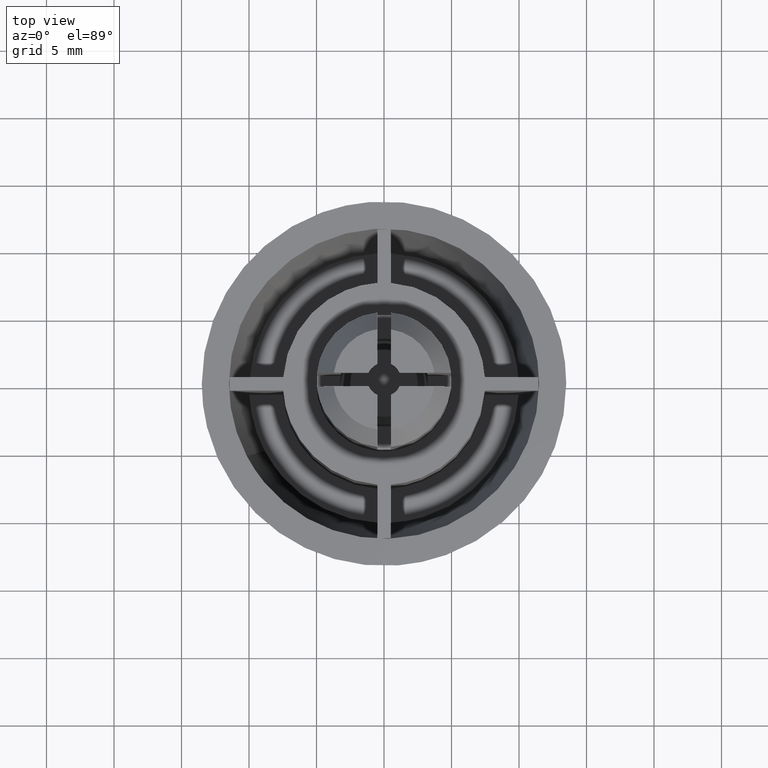
[diagram: clean part render]
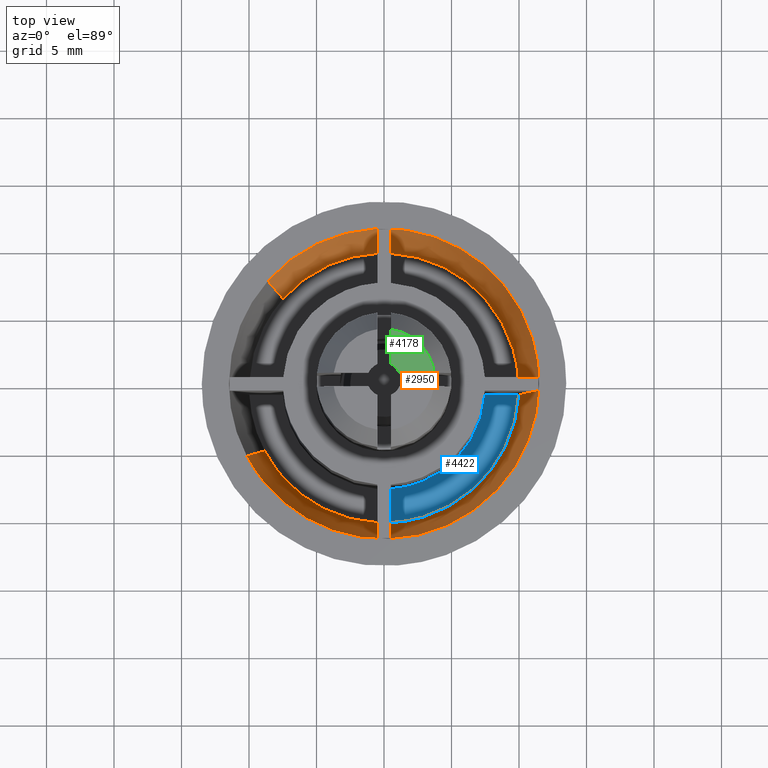
[diagram: same view with three faces highlighted in distinct colors, each labeled with its STEP entity id]
A machine part, top view with three faces highlighted in distinct colors.
Their STEP definitions:

[orange] entity #2950 — the highlighted face is a freeform B-spline surface patch.
#2697=CARTESIAN_POINT('',(-8.800679944089653,-4.642150836173336,-18.757499999999997));
#2698=CARTESIAN_POINT('',(-7.953315899770522,-6.248600090702392,-18.757500000000000));
#2699=CARTESIAN_POINT('',(-6.593037243172020,-7.452072985031303,-18.757500000000000));
#2700=CARTESIAN_POINT('',(0.859035741859283,-14.045110228203322,-18.757500000000007));
#2701=CARTESIAN_POINT('',(7.452072985031303,-6.593037243172020,-18.757500000000000));
#2702=CARTESIAN_POINT('',(14.045110228203322,0.859035741859283,-18.757500000000007));
#2703=CARTESIAN_POINT('',(6.593037243172020,7.452072985031303,-18.757500000000000));
#2704=CARTESIAN_POINT('',(-0.859035741859283,14.045110228203322,-18.757500000000007));
#2705=CARTESIAN_POINT('',(-7.452072985031303,6.593037243172020,-18.757500000000000));
#2706=CARTESIAN_POINT('',(-10.196106031705060,-5.378205143408116,0.468937499999999));
#2707=CARTESIAN_POINT('',(-9.214384880814372,-7.239371216687707,0.468937499999999));
#2708=CARTESIAN_POINT('',(-7.638421943466772,-8.633665443362924,0.468937499999999));
#2709=CARTESIAN_POINT('',(0.995243499896152,-16.272087386829703,0.468937499999999));
#2710=CARTESIAN_POINT('',(8.633665443362924,-7.638421943466772,0.468937499999999));
#2711=CARTESIAN_POINT('',(16.272087386829703,0.995243499896152,0.468937499999999));
#2712=CARTESIAN_POINT('',(7.638421943466772,8.633665443362924,0.468937499999999));
#2713=CARTESIAN_POINT('',(-0.995243499896152,16.272087386829703,0.468937499999999));
#2714=CARTESIAN_POINT('',(-8.633665443362924,7.638421943466772,0.468937499999999));
#2722=(BOUNDED_SURFACE()B_SPLINE_SURFACE(2,1,((#2697,#2706),(#2698,#2707),(#2699,#2708),(#2700,#2709),(#2701,#2710),(#2702,#2711),(#2703,#2712),(#2704,#2713),(#2705,#2714)),.UNSPECIFIED.,.F.,.F.,.U.)B_SPLINE_SURFACE_WITH_KNOTS((3,2,2,2,3),(2,2),(0.0,4.583894576879430,23.683455313877051,42.783016050874657,61.882576787872267),(0.0,19.291057224802451),.UNSPECIFIED.)GEOMETRIC_REPRESENTATION_ITEM()RATIONAL_B_SPLINE_SURFACE(((0.893152553776853,0.893152553776853),(0.929705627484771,0.929705627484771),(1.0,1.0),(0.707106781186548,0.707106781186548),(1.0,1.0),(0.707106781186548,0.707106781186548),(1.0,1.0),(0.707106781186548,0.707106781186548),(1.0,1.0)))REPRESENTATION_ITEM('')SURFACE());
#2723=CARTESIAN_POINT('',(-0.500000000000000,-9.974968671630011,-18.300000000000001));
#2724=VERTEX_POINT('',#2723);
#2725=CARTESIAN_POINT('',(-8.833886152472324,-4.659662250770997,-18.300001924183981));
#2726=VERTEX_POINT('',#2725);
#2727=CARTESIAN_POINT('',(-0.500000000000000,-9.974968671630011,-18.300000000000001));
#2728=CARTESIAN_POINT('',(-6.180379209926489,-9.690236949578978,-18.300000962091993));
#2729=CARTESIAN_POINT('',(-8.833886152472324,-4.659662250770997,-18.300001924183977));
#2737=(BOUNDED_CURVE()B_SPLINE_CURVE(2,(#2727,#2728,#2729),.UNSPECIFIED.,.F.,.U.)B_SPLINE_CURVE_WITH_KNOTS((3,3),(0.0,0.696200723080585),.UNSPECIFIED.)CURVE()GEOMETRIC_REPRESENTATION_ITEM()RATIONAL_B_SPLINE_CURVE((1.0,0.820115478133345,0.890702424655831))REPRESENTATION_ITEM(''));
#2738=EDGE_CURVE('',#2724,#2726,#2737,.T.);
#2739=ORIENTED_EDGE('',*,*,#2738,.T.);
#2740=CARTESIAN_POINT('',(-10.162072490668480,-5.360249970135248,-0.000001565650544));
#2741=VERTEX_POINT('',#2740);
#2742=CARTESIAN_POINT('',(-8.833886152472324,-4.659662250770997,-18.300001924183981));
#2743=CARTESIAN_POINT('',(-10.162072490668480,-5.360249970135248,-0.000001565650544));
#2744=QUASI_UNIFORM_CURVE('',1,(#2742,#2743),.UNSPECIFIED.,.F.,.U.);
#2745=EDGE_CURVE('',#2726,#2741,#2744,.T.);
#2746=ORIENTED_EDGE('',*,*,#2745,.T.);
#2747=CARTESIAN_POINT('',(11.489125293076061,0.0,0.0));
#2748=VERTEX_POINT('',#2747);
#2749=CARTESIAN_POINT('',(11.489125293076061,0.0,0.0));
#2750=CARTESIAN_POINT('',(11.489125307142276,-11.489125285656471,-0.000000193806329));
#2751=CARTESIAN_POINT('',(0.000000070882674,-11.489125255687149,-0.000000976631601));
#2752=CARTESIAN_POINT('',(-6.929237516363066,-11.489125237612265,-0.000001448763481));
#2753=CARTESIAN_POINT('',(-10.162072490668479,-5.360249970135248,-0.000001565650544));
#2761=(BOUNDED_CURVE()B_SPLINE_CURVE(2,(#2749,#2750,#2751,#2752,#2753),.UNSPECIFIED.,.F.,.U.)B_SPLINE_CURVE_WITH_KNOTS((3,2,3),(0.500000000000000,0.750000000000000,0.920610951490285),.UNSPECIFIED.)CURVE()GEOMETRIC_REPRESENTATION_ITEM()RATIONAL_B_SPLINE_CURVE((1.0,0.707106781186547,1.0,0.800116837012739,0.873051727018632))REPRESENTATION_ITEM(''));
#2762=EDGE_CURVE('',#2748,#2741,#2761,.T.);
#2763=ORIENTED_EDGE('',*,*,#2762,.F.);
#2764=CARTESIAN_POINT('',(-8.604846457047625,7.612924142831815,-0.000001827683811));
#2765=VERTEX_POINT('',#2764);
#2766=CARTESIAN_POINT('',(-8.604846457047625,7.612924142831816,-0.000001827683811));
#2767=CARTESIAN_POINT('',(-5.175473878762452,11.489125202180796,-0.000001671721395));
#2768=CARTESIAN_POINT('',(0.000000077439428,11.489125224563450,-0.000001260065601));
#2769=CARTESIAN_POINT('',(11.489125314353814,11.489125274251098,-0.000000346223695));
#2770=CARTESIAN_POINT('',(11.489125293076061,0.0,0.0));
#2778=(BOUNDED_CURVE()B_SPLINE_CURVE(2,(#2766,#2767,#2768,#2769,#2770),.UNSPECIFIED.,.F.,.U.)B_SPLINE_CURVE_WITH_KNOTS((3,2,3),(0.115779879047722,0.250000000000000,0.500000000000000),.UNSPECIFIED.)CURVE()GEOMETRIC_REPRESENTATION_ITEM()RATIONAL_B_SPLINE_CURVE((0.854350159782515,0.842751346979026,1.0,0.707106781186547,1.0))REPRESENTATION_ITEM(''));
#2779=EDGE_CURVE('',#2765,#2748,#2778,.T.);
#2780=ORIENTED_EDGE('',*,*,#2779,.F.);
#2781=CARTESIAN_POINT('',(-7.480189557175571,6.617912275213395,-18.300000796974061));
#2782=VERTEX_POINT('',#2781);
#2783=CARTESIAN_POINT('',(-7.480189557175571,6.617912275213395,-18.300000796974061));
#2784=CARTESIAN_POINT('',(-8.604846457047625,7.612924142831815,-0.000001827683811));
#2785=QUASI_UNIFORM_CURVE('',1,(#2783,#2784),.UNSPECIFIED.,.F.,.U.);
#2786=EDGE_CURVE('',#2782,#2765,#2785,.T.);
#2787=ORIENTED_EDGE('',*,*,#2786,.F.);
#2788=CARTESIAN_POINT('',(-0.499999999999915,9.974968671630011,-18.300000000000001));
#2789=VERTEX_POINT('',#2788);
#2790=CARTESIAN_POINT('',(-7.480189557175571,6.617912275213395,-18.300000796974057));
#2791=CARTESIAN_POINT('',(-4.696207739756175,9.764631783470644,-18.300000000000004));
#2792=CARTESIAN_POINT('',(-0.499999999999915,9.974968671630007,-18.300000000000001));
#2800=(BOUNDED_CURVE()B_SPLINE_CURVE(2,(#2790,#2791,#2792),.UNSPECIFIED.,.F.,.U.)B_SPLINE_CURVE_WITH_KNOTS((3,3),(0.460338608839000,1.0),.UNSPECIFIED.)CURVE()GEOMETRIC_REPRESENTATION_ITEM()RATIONAL_B_SPLINE_CURVE((0.871622749116844,0.860562150970857,1.0))REPRESENTATION_ITEM(''));
#2801=EDGE_CURVE('',#2782,#2789,#2800,.T.);
#2802=ORIENTED_EDGE('',*,*,#2801,.T.);
#2803=CARTESIAN_POINT('',(-0.499999999999915,11.437173008651300,-0.500000000000000));
#2804=VERTEX_POINT('',#2803);
#2805=CARTESIAN_POINT('',(-0.499999999999915,11.437173008651310,-0.500000000000008));
#2806=CARTESIAN_POINT('',(-0.499999999999915,11.008137666347549,-5.723549437452541));
#2807=CARTESIAN_POINT('',(-0.499999999999915,10.579057318380380,-10.947095178762581));
#2808=CARTESIAN_POINT('',(-0.499999999999915,10.149912354649819,-16.170635611319899));
#2809=CARTESIAN_POINT('',(-0.499999999999915,10.091599023222461,-16.880423841898260));
#2810=CARTESIAN_POINT('',(-0.499999999999915,10.033284483780021,-17.590211973232140));
#2811=CARTESIAN_POINT('',(-0.499999999999915,9.974968671630013,-18.300000000000001));
#2812=B_SPLINE_CURVE_WITH_KNOTS('',3,(#2805,#2806,#2807,#2808,#2809,#2810,#2811),.UNSPECIFIED.,.F.,.U.,(4,3,4),(0.016651394719462,0.032374812300708,0.034511351088305),.UNSPECIFIED.);
#2813=EDGE_CURVE('',#2804,#2789,#2812,.T.);
#2814=ORIENTED_EDGE('',*,*,#2813,.F.);
#2815=CARTESIAN_POINT('',(0.500000000000000,11.437173008651300,-0.500000000000000));
#2816=VERTEX_POINT('',#2815);
#2817=CARTESIAN_POINT('',(0.499999999999999,11.437173008651291,-0.500000000000000));
#2818=CARTESIAN_POINT('',(4.564491E-014,11.459031557071512,-0.500000000000000));
#2819=CARTESIAN_POINT('',(-0.499999999999914,11.437173008651300,-0.500000000000000));
#2827=(BOUNDED_CURVE()B_SPLINE_CURVE(2,(#2817,#2818,#2819),.UNSPECIFIED.,.F.,.U.)CURVE()GEOMETRIC_REPRESENTATION_ITEM()QUASI_UNIFORM_CURVE()RATIONAL_B_SPLINE_CURVE((1.0,0.999045775278953,1.0))REPRESENTATION_ITEM(''));
#2828=EDGE_CURVE('',#2816,#2804,#2827,.T.);
#2829=ORIENTED_EDGE('',*,*,#2828,.F.);
#2830=CARTESIAN_POINT('',(0.500000000000000,9.974968671630011,-18.300000000000001));
#2831=VERTEX_POINT('',#2830);
#2832=CARTESIAN_POINT('',(0.500000000000000,11.437173008651310,-0.500000000000007));
#2833=CARTESIAN_POINT('',(0.500000000000000,11.008137666347549,-5.723549437452541));
#2834=CARTESIAN_POINT('',(0.500000000000000,10.579057318380380,-10.947095178762581));
#2835=CARTESIAN_POINT('',(0.500000000000000,10.149912354649819,-16.170635611319899));
#2836=CARTESIAN_POINT('',(0.500000000000000,10.091599023222461,-16.880423841898260));
#2837=CARTESIAN_POINT('',(0.500000000000000,10.033284483780010,-17.590211973232140));
#2838=CARTESIAN_POINT('',(0.500000000000000,9.974968671630007,-18.300000000000001));
#2839=B_SPLINE_CURVE_WITH_KNOTS('',3,(#2832,#2833,#2834,#2835,#2836,#2837,#2838),.UNSPECIFIED.,.F.,.U.,(4,3,4),(0.016651394719462,0.032374812300708,0.034511351088305),.UNSPECIFIED.);
#2840=EDGE_CURVE('',#2816,#2831,#2839,.T.);
#2841=ORIENTED_EDGE('',*,*,#2840,.T.);
#2842=CARTESIAN_POINT('',(9.974968671630011,0.499999999999915,-18.300000000000001));
#2843=VERTEX_POINT('',#2842);
#2844=CARTESIAN_POINT('',(0.500000000000000,9.974968671630002,-18.300000000000001));
#2845=CARTESIAN_POINT('',(9.522701511285646,9.522701511285566,-18.300000000000001));
#2846=CARTESIAN_POINT('',(9.974968671630007,0.499999999999916,-18.300000000000001));
#2854=(BOUNDED_CURVE()B_SPLINE_CURVE(2,(#2844,#2845,#2846),.UNSPECIFIED.,.F.,.U.)CURVE()GEOMETRIC_REPRESENTATION_ITEM()QUASI_UNIFORM_CURVE()RATIONAL_B_SPLINE_CURVE((1.0,0.741619742836961,1.0))REPRESENTATION_ITEM(''));
#2855=EDGE_CURVE('',#2831,#2843,#2854,.T.);
#2856=ORIENTED_EDGE('',*,*,#2855,.T.);
#2857=CARTESIAN_POINT('',(11.437173008651300,0.499999999999915,-0.500000000000000));
#2858=VERTEX_POINT('',#2857);
#2859=CARTESIAN_POINT('',(11.437173008651310,0.499999999999915,-0.500000000000008));
#2860=CARTESIAN_POINT('',(11.008137666347549,0.499999999999915,-5.723549437452541));
#2861=CARTESIAN_POINT('',(10.579057318380380,0.499999999999915,-10.947095178762581));
#2862=CARTESIAN_POINT('',(10.149912354649819,0.499999999999915,-16.170635611319899));
#2863=CARTESIAN_POINT('',(10.091599023222461,0.499999999999915,-16.880423841898260));
#2864=CARTESIAN_POINT('',(10.033284483780021,0.499999999999915,-17.590211973232140));
#2865=CARTESIAN_POINT('',(9.974968671630013,0.499999999999915,-18.300000000000001));
#2866=B_SPLINE_CURVE_WITH_KNOTS('',3,(#2859,#2860,#2861,#2862,#2863,#2864,#2865),.UNSPECIFIED.,.F.,.U.,(4,3,4),(0.016651394719462,0.032374812300708,0.034511351088305),.UNSPECIFIED.);
#2867=EDGE_CURVE('',#2858,#2843,#2866,.T.);
#2868=ORIENTED_EDGE('',*,*,#2867,.F.);
#2869=CARTESIAN_POINT('',(11.437173008651300,-0.500000000000000,-0.500000000000000));
#2870=VERTEX_POINT('',#2869);
#2871=CARTESIAN_POINT('',(11.437173008651291,-0.500000000000001,-0.500000000000000));
#2872=CARTESIAN_POINT('',(11.459031557071512,-4.737963E-014,-0.500000000000000));
#2873=CARTESIAN_POINT('',(11.437173008651300,0.499999999999914,-0.500000000000000));
#2881=(BOUNDED_CURVE()B_SPLINE_CURVE(2,(#2871,#2872,#2873),.UNSPECIFIED.,.F.,.U.)CURVE()GEOMETRIC_REPRESENTATION_ITEM()QUASI_UNIFORM_CURVE()RATIONAL_B_SPLINE_CURVE((1.0,0.999045775278953,1.0))REPRESENTATION_ITEM(''));
#2882=EDGE_CURVE('',#2870,#2858,#2881,.T.);
#2883=ORIENTED_EDGE('',*,*,#2882,.F.);
#2884=CARTESIAN_POINT('',(9.974968671630011,-0.500000000000000,-18.300000000000001));
#2885=VERTEX_POINT('',#2884);
#2886=CARTESIAN_POINT('',(11.437173008651310,-0.500000000000000,-0.500000000000007));
#2887=CARTESIAN_POINT('',(11.008137666347549,-0.500000000000000,-5.723549437452541));
#2888=CARTESIAN_POINT('',(10.579057318380380,-0.500000000000000,-10.947095178762581));
#2889=CARTESIAN_POINT('',(10.149912354649819,-0.500000000000000,-16.170635611319899));
#2890=CARTESIAN_POINT('',(10.091599023222461,-0.500000000000000,-16.880423841898260));
#2891=CARTESIAN_POINT('',(10.033284483780010,-0.500000000000000,-17.590211973232140));
#2892=CARTESIAN_POINT('',(9.974968671630007,-0.500000000000000,-18.300000000000001));
#2893=B_SPLINE_CURVE_WITH_KNOTS('',3,(#2886,#2887,#2888,#2889,#2890,#2891,#2892),.UNSPECIFIED.,.F.,.U.,(4,3,4),(0.016651394719462,0.032374812300708,0.034511351088305),.UNSPECIFIED.);
#2894=EDGE_CURVE('',#2870,#2885,#2893,.T.);
#2895=ORIENTED_EDGE('',*,*,#2894,.T.);
#2896=CARTESIAN_POINT('',(0.499999999999915,-9.974968671630011,-18.300000000000001));
#2897=VERTEX_POINT('',#2896);
#2898=CARTESIAN_POINT('',(9.974968671630002,-0.499999999999997,-18.300000000000001));
#2899=CARTESIAN_POINT('',(9.522701511285568,-9.522701511285646,-18.300000000000004));
#2900=CARTESIAN_POINT('',(0.499999999999916,-9.974968671630007,-18.300000000000001));
#2908=(BOUNDED_CURVE()B_SPLINE_CURVE(2,(#2898,#2899,#2900),.UNSPECIFIED.,.F.,.U.)CURVE()GEOMETRIC_REPRESENTATION_ITEM()QUASI_UNIFORM_CURVE()RATIONAL_B_SPLINE_CURVE((1.0,0.741619742836961,1.0))REPRESENTATION_ITEM(''));
#2909=EDGE_CURVE('',#2885,#2897,#2908,.T.);
#2910=ORIENTED_EDGE('',*,*,#2909,.T.);
#2911=CARTESIAN_POINT('',(0.499999999999915,-11.437173008651300,-0.500000000000000));
#2912=VERTEX_POINT('',#2911);
#2913=CARTESIAN_POINT('',(0.499999999999915,-11.437173008651310,-0.500000000000008));
#2914=CARTESIAN_POINT('',(0.499999999999915,-11.008137666347549,-5.723549437452541));
#2915=CARTESIAN_POINT('',(0.499999999999915,-10.579057318380380,-10.947095178762581));
#2916=CARTESIAN_POINT('',(0.499999999999915,-10.149912354649819,-16.170635611319899));
#2917=CARTESIAN_POINT('',(0.499999999999915,-10.091599023222461,-16.880423841898260));
#2918=CARTESIAN_POINT('',(0.499999999999915,-10.033284483780021,-17.590211973232140));
#2919=CARTESIAN_POINT('',(0.499999999999915,-9.974968671630013,-18.300000000000001));
#2920=B_SPLINE_CURVE_WITH_KNOTS('',3,(#2913,#2914,#2915,#2916,#2917,#2918,#2919),.UNSPECIFIED.,.F.,.U.,(4,3,4),(0.016651394719462,0.032374812300708,0.034511351088305),.UNSPECIFIED.);
#2921=EDGE_CURVE('',#2912,#2897,#2920,.T.);
#2922=ORIENTED_EDGE('',*,*,#2921,.F.);
#2923=CARTESIAN_POINT('',(-0.500000000000000,-11.437173008651300,-0.500000000000000));
#2924=VERTEX_POINT('',#2923);
#2925=CARTESIAN_POINT('',(-0.500000000000000,-11.437173008651291,-0.500000000000000));
#2926=CARTESIAN_POINT('',(-4.586175E-014,-11.459031557071512,-0.500000000000000));
#2927=CARTESIAN_POINT('',(0.499999999999915,-11.437173008651300,-0.500000000000000));
#2935=(BOUNDED_CURVE()B_SPLINE_CURVE(2,(#2925,#2926,#2927),.UNSPECIFIED.,.F.,.U.)CURVE()GEOMETRIC_REPRESENTATION_ITEM()QUASI_UNIFORM_CURVE()RATIONAL_B_SPLINE_CURVE((1.0,0.999045775278953,1.0))REPRESENTATION_ITEM(''));
#2936=EDGE_CURVE('',#2924,#2912,#2935,.T.);
#2937=ORIENTED_EDGE('',*,*,#2936,.F.);
#2938=CARTESIAN_POINT('',(-0.500000000000000,-11.437173008651310,-0.500000000000007));
#2939=CARTESIAN_POINT('',(-0.500000000000000,-11.008137666347549,-5.723549437452541));
#2940=CARTESIAN_POINT('',(-0.500000000000000,-10.579057318380380,-10.947095178762581));
#2941=CARTESIAN_POINT('',(-0.500000000000000,-10.149912354649819,-16.170635611319899));
#2942=CARTESIAN_POINT('',(-0.500000000000000,-10.091599023222461,-16.880423841898260));
#2943=CARTESIAN_POINT('',(-0.500000000000000,-10.033284483780010,-17.590211973232140));
#2944=CARTESIAN_POINT('',(-0.500000000000000,-9.974968671630007,-18.300000000000001));
#2945=B_SPLINE_CURVE_WITH_KNOTS('',3,(#2938,#2939,#2940,#2941,#2942,#2943,#2944),.UNSPECIFIED.,.F.,.U.,(4,3,4),(0.016651394719462,0.032374812300708,0.034511351088305),.UNSPECIFIED.);
#2946=EDGE_CURVE('',#2924,#2724,#2945,.T.);
#2947=ORIENTED_EDGE('',*,*,#2946,.T.);
#2948=EDGE_LOOP('',(#2739,#2746,#2763,#2780,#2787,#2802,#2814,#2829,#2841,#2856,#2868,#2883,#2895,#2910,#2922,#2937,#2947));
#2949=FACE_OUTER_BOUND('',#2948,.T.);
#2950=ADVANCED_FACE('',(#2949),#2722,.F.);

[blue] entity #4422 — the highlighted face is a freeform B-spline surface patch.
#2884=CARTESIAN_POINT('',(9.974968671630011,-0.500000000000000,-18.300000000000001));
#2885=VERTEX_POINT('',#2884);
#2896=CARTESIAN_POINT('',(0.499999999999915,-9.974968671630011,-18.300000000000001));
#2897=VERTEX_POINT('',#2896);
#2898=CARTESIAN_POINT('',(9.974968671630002,-0.499999999999997,-18.300000000000001));
#2899=CARTESIAN_POINT('',(9.522701511285568,-9.522701511285646,-18.300000000000004));
#2900=CARTESIAN_POINT('',(0.499999999999916,-9.974968671630007,-18.300000000000001));
#2908=(BOUNDED_CURVE()B_SPLINE_CURVE(2,(#2898,#2899,#2900),.UNSPECIFIED.,.F.,.U.)CURVE()GEOMETRIC_REPRESENTATION_ITEM()QUASI_UNIFORM_CURVE()RATIONAL_B_SPLINE_CURVE((1.0,0.741619742836961,1.0))REPRESENTATION_ITEM(''));
#2909=EDGE_CURVE('',#2885,#2897,#2908,.T.);
#3078=CARTESIAN_POINT('',(0.499999999999915,-7.466592488493340,-18.300000000000001));
#3079=VERTEX_POINT('',#3078);
#3080=CARTESIAN_POINT('',(0.499999999999915,-9.974968671630011,-18.300000000000001));
#3081=CARTESIAN_POINT('',(0.499999999999915,-7.466592488493340,-18.300000000000001));
#3082=QUASI_UNIFORM_CURVE('',1,(#3080,#3081),.UNSPECIFIED.,.F.,.U.);
#3083=EDGE_CURVE('',#2897,#3079,#3082,.T.);
#3162=CARTESIAN_POINT('',(7.466592488493331,-0.500000000000000,-18.300000000000001));
#3163=VERTEX_POINT('',#3162);
#3169=CARTESIAN_POINT('',(9.974968671630011,-0.500000000000000,-18.300000000000001));
#3170=CARTESIAN_POINT('',(7.466592488493331,-0.500000000000000,-18.300000000000001));
#3171=QUASI_UNIFORM_CURVE('',1,(#3169,#3170),.UNSPECIFIED.,.F.,.U.);
#3172=EDGE_CURVE('',#2885,#3163,#3171,.T.);
#4393=CARTESIAN_POINT('',(7.466592488493330,-0.499999999999998,-18.300000000000001));
#4394=CARTESIAN_POINT('',(7.029354579151558,-7.029354579151633,-18.300000000000001));
#4395=CARTESIAN_POINT('',(0.499999999999917,-7.466592488493334,-18.300000000000001));
#4403=(BOUNDED_CURVE()B_SPLINE_CURVE(2,(#4393,#4394,#4395),.UNSPECIFIED.,.F.,.U.)CURVE()GEOMETRIC_REPRESENTATION_ITEM()QUASI_UNIFORM_CURVE()RATIONAL_B_SPLINE_CURVE((1.0,0.752772210118566,1.0))REPRESENTATION_ITEM(''));
#4404=EDGE_CURVE('',#3163,#3079,#4403,.T.);
#4411=CARTESIAN_POINT('',(0.026725333216320,-10.448243605246279,-18.300000000000001));
#4412=CARTESIAN_POINT('',(10.448243592552069,-10.448243605246279,-18.300000000000001));
#4413=CARTESIAN_POINT('',(0.026725333216320,-0.026725066383730,-18.300000000000001));
#4414=CARTESIAN_POINT('',(10.448243592552069,-0.026725066383730,-18.300000000000001));
#4415=B_SPLINE_SURFACE_WITH_KNOTS('',1,1,((#4411,#4413),(#4412,#4414)),.UNSPECIFIED.,.F.,.F.,.U.,(2,2),(2,2),(0.0,10.421518259335750),(0.0,10.421518538862550),.UNSPECIFIED.);
#4416=ORIENTED_EDGE('',*,*,#3083,.F.);
#4417=ORIENTED_EDGE('',*,*,#2909,.F.);
#4418=ORIENTED_EDGE('',*,*,#3172,.T.);
#4419=ORIENTED_EDGE('',*,*,#4404,.T.);
#4420=EDGE_LOOP('',(#4416,#4417,#4418,#4419));
#4421=FACE_OUTER_BOUND('',#4420,.T.);
#4422=ADVANCED_FACE('',(#4421),#4415,.T.);

[green] entity #4178 — the highlighted face is a freeform B-spline surface patch.
#3503=CARTESIAN_POINT('',(1.145643925491660,0.500000000764944,18.0));
#3504=VERTEX_POINT('',#3503);
#3505=CARTESIAN_POINT('',(0.499999990438230,1.145643927912058,18.0));
#3506=VERTEX_POINT('',#3505);
#3507=CARTESIAN_POINT('',(1.145643925491660,0.500000000764944,18.0));
#3508=CARTESIAN_POINT('',(0.949476356031921,0.949476363956439,17.999999999999996));
#3509=CARTESIAN_POINT('',(0.499999990438231,1.145643927912058,18.0));
#3517=(BOUNDED_CURVE()B_SPLINE_CURVE(2,(#3507,#3508,#3509),.UNSPECIFIED.,.F.,.U.)CURVE()GEOMETRIC_REPRESENTATION_ITEM()QUASI_UNIFORM_CURVE()RATIONAL_B_SPLINE_CURVE((1.0,0.930916780791259,1.0))REPRESENTATION_ITEM(''));
#3518=EDGE_CURVE('',#3504,#3506,#3517,.T.);
#3747=CARTESIAN_POINT('',(3.716517186829625,0.500000000000000,18.0));
#3748=VERTEX_POINT('',#3747);
#3749=CARTESIAN_POINT('',(1.145643925491660,0.500000000764944,18.0));
#3750=CARTESIAN_POINT('',(3.716517186829625,0.500000000000000,18.0));
#3751=QUASI_UNIFORM_CURVE('',1,(#3749,#3750),.UNSPECIFIED.,.F.,.U.);
#3752=EDGE_CURVE('',#3504,#3748,#3751,.T.);
#4061=CARTESIAN_POINT('',(0.500000000000000,3.716517186829625,18.0));
#4062=VERTEX_POINT('',#4061);
#4063=CARTESIAN_POINT('',(0.500000000000000,3.716517186829625,18.0));
#4064=CARTESIAN_POINT('',(0.499999990438230,1.145643927912058,18.0));
#4065=QUASI_UNIFORM_CURVE('',1,(#4063,#4064),.UNSPECIFIED.,.F.,.U.);
#4066=EDGE_CURVE('',#4062,#3506,#4065,.T.);
#4147=CARTESIAN_POINT('',(0.500000000000000,3.716517186829627,18.0));
#4148=CARTESIAN_POINT('',(3.335098465606754,3.335098465606754,18.000000000000007));
#4149=CARTESIAN_POINT('',(3.716517186829627,0.500000000000000,18.0));
#4157=(BOUNDED_CURVE()B_SPLINE_CURVE(2,(#4147,#4148,#4149),.UNSPECIFIED.,.F.,.U.)CURVE()GEOMETRIC_REPRESENTATION_ITEM()QUASI_UNIFORM_CURVE()RATIONAL_B_SPLINE_CURVE((1.0,0.795074105545827,1.0))REPRESENTATION_ITEM(''));
#4158=EDGE_CURVE('',#4062,#3748,#4157,.T.);
#4167=CARTESIAN_POINT('',(3.877182244749503,0.339334972752095,18.0));
#4168=CARTESIAN_POINT('',(0.339334875002543,0.339334972752095,18.0));
#4169=CARTESIAN_POINT('',(3.877182244749503,3.877182300351244,18.0));
#4170=CARTESIAN_POINT('',(0.339334875002543,3.877182300351244,18.0));
#4171=B_SPLINE_SURFACE_WITH_KNOTS('',1,1,((#4167,#4169),(#4168,#4170)),.UNSPECIFIED.,.F.,.F.,.U.,(2,2),(2,2),(0.0,3.537847369746961),(0.0,3.537847327599149),.UNSPECIFIED.);
#4172=ORIENTED_EDGE('',*,*,#4066,.T.);
#4173=ORIENTED_EDGE('',*,*,#3518,.F.);
#4174=ORIENTED_EDGE('',*,*,#3752,.T.);
#4175=ORIENTED_EDGE('',*,*,#4158,.F.);
#4176=EDGE_LOOP('',(#4172,#4173,#4174,#4175));
#4177=FACE_OUTER_BOUND('',#4176,.T.);
#4178=ADVANCED_FACE('',(#4177),#4171,.F.);